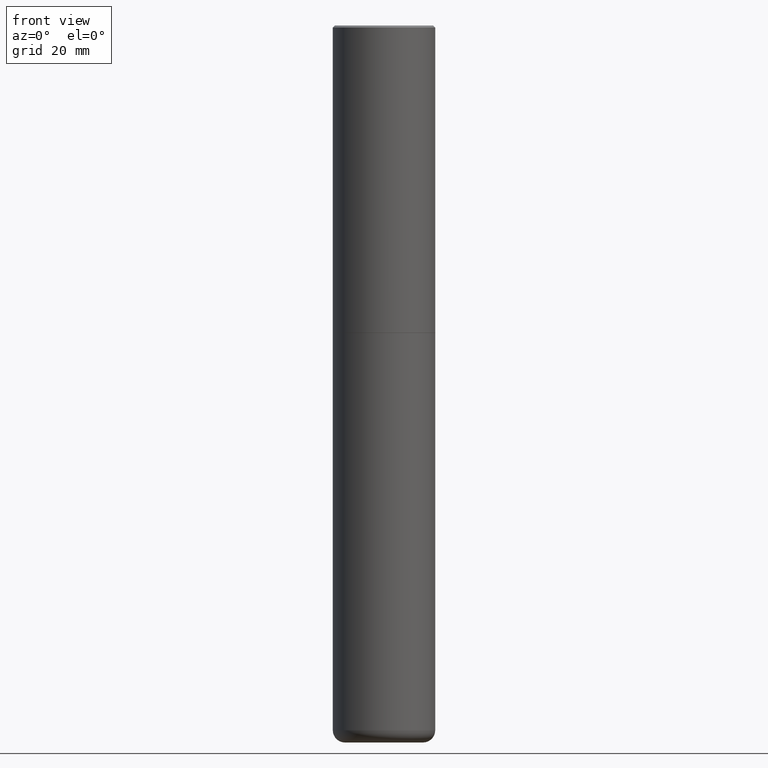
[diagram: clean part render]
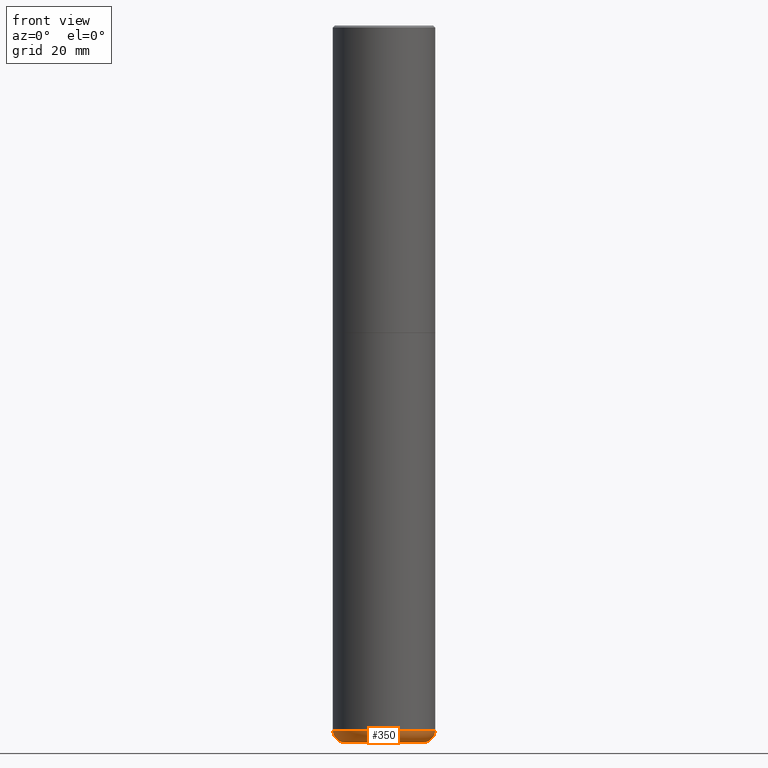
[diagram: same view with one face highlighted and labeled with its STEP entity id]
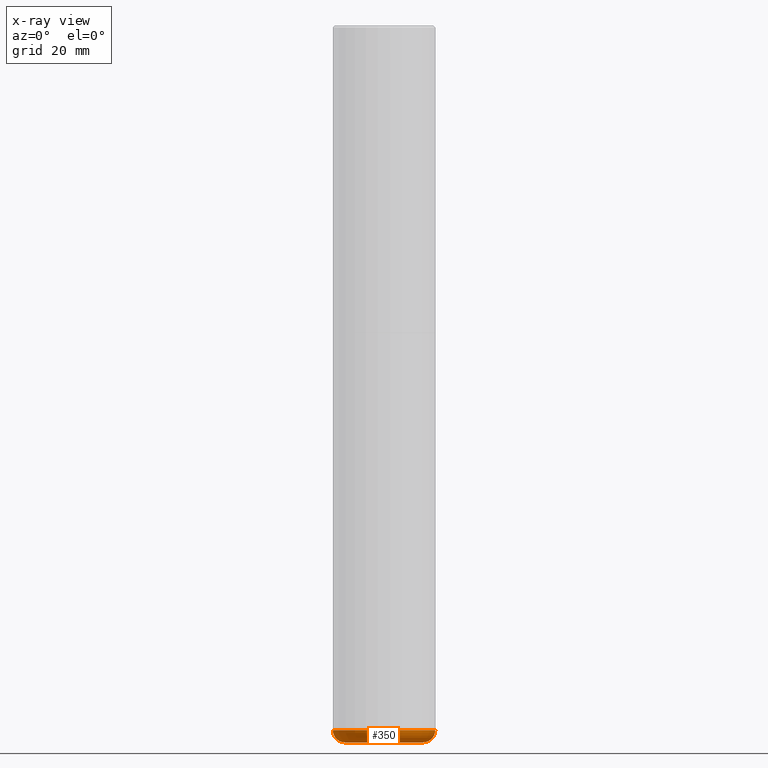
[diagram: x-ray of the same camera — body ghosted, the highlighted face saturated]
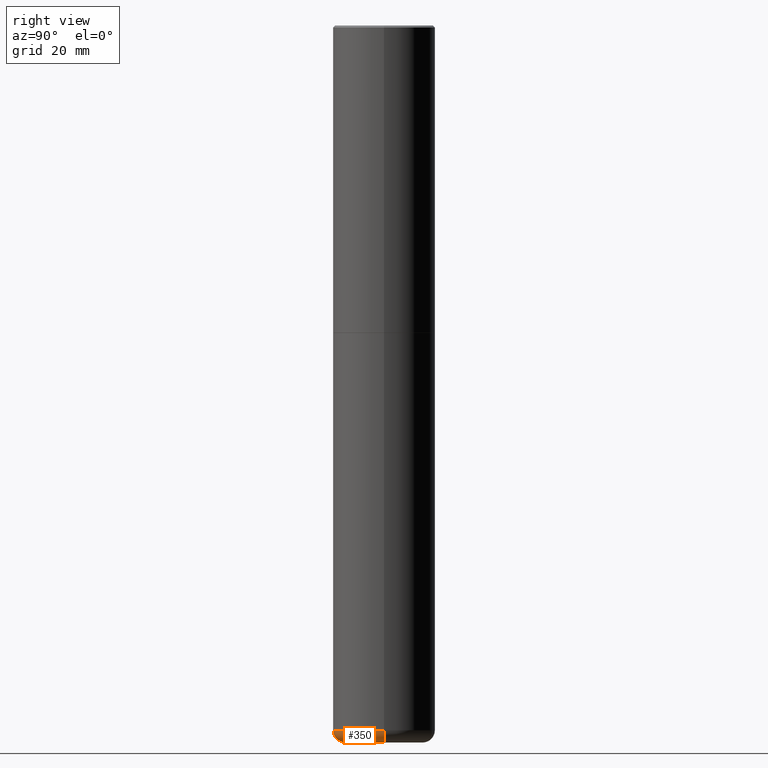
[diagram: same view with one face highlighted and labeled with its STEP entity id]
A machine part, front view. The second image highlights one B-rep face of the part: STEP entity #350.
The next image is the same camera in x-ray: the body ghosted, the highlighted face saturated — about 0% of this face is hidden behind the body in this view.
A second angle (right view) of the same face is appended — the face is thin or edge-on in the first view.
In plain terms, the highlighted toroidal blend (fillet) surface has major radius 9.652 mm and minor (blend) radius 3.048 mm.
Its self-contained STEP definition (entity closure, byte-faithful):
#7 = DIRECTION ( 'NONE',  ( 1.000000000000000000, -6.982962677686273021E-15, 0.000000000000000000 ) ) ;
#31 = EDGE_CURVE ( 'NONE', #335, #269, #34, .T. ) ;
#32 = EDGE_CURVE ( 'NONE', #205, #356, #274, .T. ) ;
#34 = CIRCLE ( 'NONE', #149, 0.3799999999999999489 ) ;
#53 = ORIENTED_EDGE ( 'NONE', *, *, #32, .F. ) ;
#54 = CARTESIAN_POINT ( 'NONE',  ( 1.711828164329595394E-28, -2.444036937190201868E-14, -7.000000000000000000 ) ) ;
#82 = DIRECTION ( 'NONE',  ( -2.445468806185136597E-29, 3.491481338843145583E-15, 1.000000000000000000 ) ) ;
#84 = CARTESIAN_POINT ( 'NONE',  ( -0.3799999999999999489, -2.132132921535246210E-14, -6.879999999999999893 ) ) ;
#85 = DIRECTION ( 'NONE',  ( 1.000000000000000000, -6.982962677686269077E-15, 0.000000000000000000 ) ) ;
#88 = TOROIDAL_SURFACE ( 'NONE', #321, 0.3799999999999999489, 0.1199999999999999539 ) ;
#117 = ORIENTED_EDGE ( 'NONE', *, *, #31, .T. ) ;
#123 = DIRECTION ( 'NONE',  ( -2.445468806185136597E-29, 3.491481338843145583E-15, 1.000000000000000000 ) ) ;
#127 = CIRCLE ( 'NONE', #376, 0.1199999999999999539 ) ;
#149 = AXIS2_PLACEMENT_3D ( 'NONE', #54, #277, #7 ) ;
#165 = EDGE_LOOP ( 'NONE', ( #186, #117, #309, #53 ) ) ;
#171 = CARTESIAN_POINT ( 'NONE',  ( 0.3799999999999999489, -2.667491742876162529E-14, -6.879999999999999893 ) ) ;
#174 = CARTESIAN_POINT ( 'NONE',  ( -0.5000000000000000000, -2.046867793244033797E-14, -6.879999999999999893 ) ) ;
#186 = ORIENTED_EDGE ( 'NONE', *, *, #259, .F. ) ;
#188 = DIRECTION ( 'NONE',  ( 1.000000000000000000, -6.982962677686264344E-15, 4.883557194083112340E-29 ) ) ;
#205 = VERTEX_POINT ( 'NONE', #174 ) ;
#225 = CARTESIAN_POINT ( 'NONE',  ( 0.3799999999999999489, -2.709389518942280193E-14, -7.000000000000000000 ) ) ;
#235 = AXIS2_PLACEMENT_3D ( 'NONE', #368, #82, #85 ) ;
#243 = FACE_OUTER_BOUND ( 'NONE', #165, .T. ) ;
#259 = EDGE_CURVE ( 'NONE', #335, #205, #265, .T. ) ;
#265 = CIRCLE ( 'NONE', #411, 0.1199999999999999539 ) ;
#269 = VERTEX_POINT ( 'NONE', #225 ) ;
#274 = CIRCLE ( 'NONE', #235, 0.5000000000000001110 ) ;
#277 = DIRECTION ( 'NONE',  ( -2.445468806185136597E-29, 3.491481338843145583E-15, 1.000000000000000000 ) ) ;
#309 = ORIENTED_EDGE ( 'NONE', *, *, #413, .T. ) ;
#313 = DIRECTION ( 'NONE',  ( 7.105427357601001859E-15, 1.000000000000000000, -3.491481338843145583E-15 ) ) ;
#316 = DIRECTION ( 'NONE',  ( -1.000000000000000000, 7.105427357600993970E-15, 0.000000000000000000 ) ) ;
#318 = DIRECTION ( 'NONE',  ( -6.982962677686266711E-15, -1.000000000000000000, 3.491481338843145583E-15 ) ) ;
#321 = AXIS2_PLACEMENT_3D ( 'NONE', #367, #123, #188 ) ;
#335 = VERTEX_POINT ( 'NONE', #406 ) ;
#350 = ADVANCED_FACE ( 'NONE', ( #243 ), #88, .T. ) ;
#356 = VERTEX_POINT ( 'NONE', #407 ) ;
#367 = CARTESIAN_POINT ( 'NONE',  ( 1.682482538655373988E-28, -2.402139161124084205E-14, -6.879999999999999893 ) ) ;
#368 = CARTESIAN_POINT ( 'NONE',  ( 1.682482538655373988E-28, -2.402139161124084205E-14, -6.879999999999999893 ) ) ;
#376 = AXIS2_PLACEMENT_3D ( 'NONE', #171, #318, #417 ) ;
#406 = CARTESIAN_POINT ( 'NONE',  ( -0.3799999999999999489, -2.110449245422699151E-14, -7.000000000000000000 ) ) ;
#407 = CARTESIAN_POINT ( 'NONE',  ( 0.5000000000000000000, -2.751287295008397541E-14, -6.879999999999999893 ) ) ;
#411 = AXIS2_PLACEMENT_3D ( 'NONE', #84, #313, #316 ) ;
#413 = EDGE_CURVE ( 'NONE', #269, #356, #127, .T. ) ;
#417 = DIRECTION ( 'NONE',  ( 1.000000000000000000, -6.982962677686270655E-15, 0.000000000000000000 ) ) ;